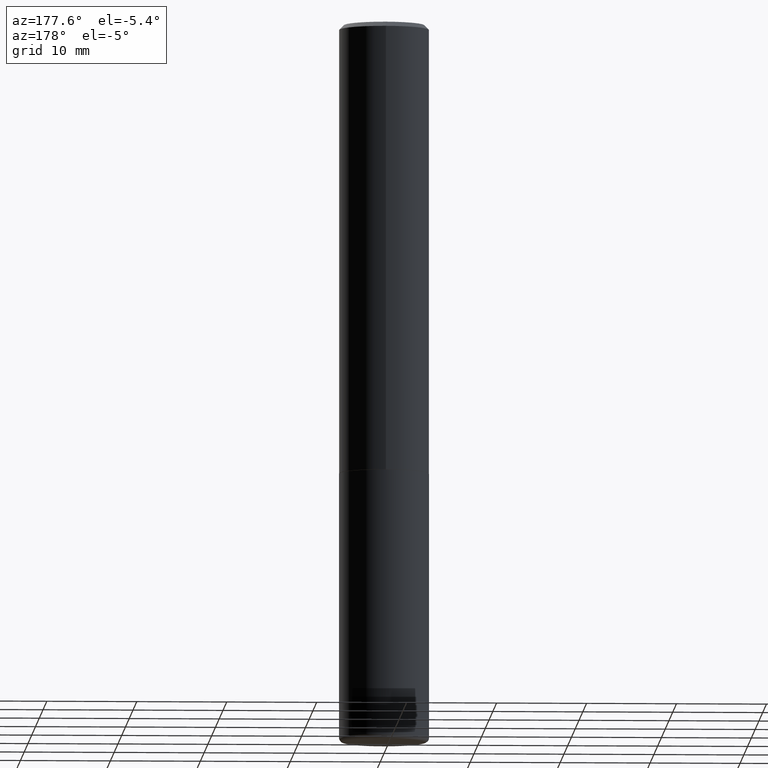
[diagram: clean part render]
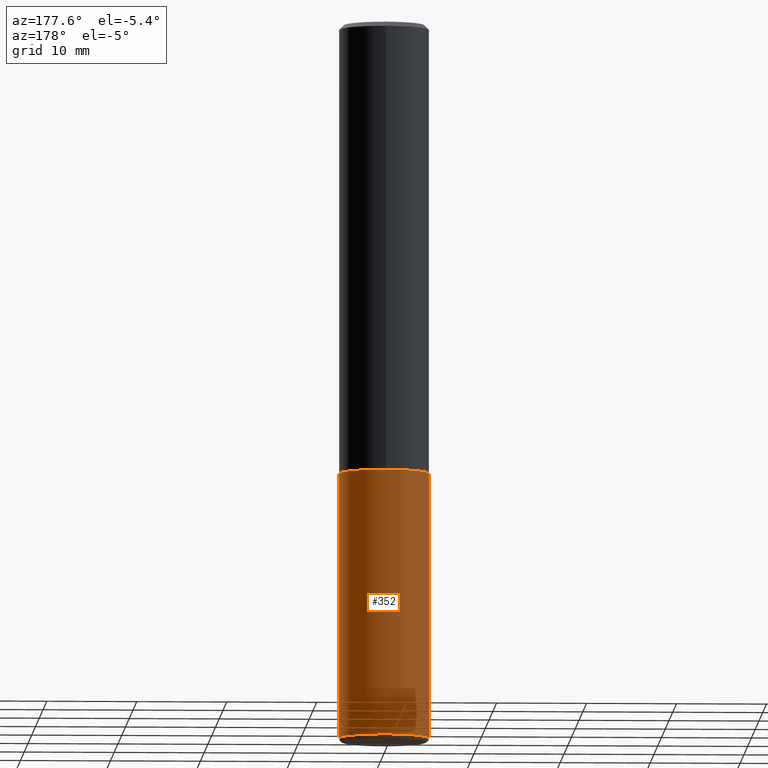
[diagram: same view with one face highlighted and labeled with its STEP entity id]
A machine part, auxiliary view. The second image highlights one B-rep face of the part: STEP entity #352.
In plain terms, the highlighted cylindrical surface (partial cylindrical patch) has radius 5 mm, axis along (-0, 0, 1).
Its self-contained STEP definition (entity closure, byte-faithful):
#5 = CARTESIAN_POINT ( 'NONE',  ( 0.1968499999999999417, -1.230258364554770273E-14, -3.129900000000000571 ) ) ;
#10 = CYLINDRICAL_SURFACE ( 'NONE', #192, 0.1968499999999999694 ) ;
#29 = LINE ( 'NONE', #346, #117 ) ;
#31 = ORIENTED_EDGE ( 'NONE', *, *, #101, .F. ) ;
#35 = LINE ( 'NONE', #417, #264 ) ;
#53 = VERTEX_POINT ( 'NONE', #181 ) ;
#56 = CIRCLE ( 'NONE', #299, 0.1968500000000000250 ) ;
#63 = CARTESIAN_POINT ( 'NONE',  ( -0.1968500000000000250, -7.501780853635190206E-15, -1.968499999999999694 ) ) ;
#101 = EDGE_CURVE ( 'NONE', #334, #273, #29, .T. ) ;
#107 = DIRECTION ( 'NONE',  ( 1.000000000000000000, -6.982962677686266711E-15, 4.876176775795935793E-29 ) ) ;
#117 = VECTOR ( 'NONE', #160, 39.37007874015748143 ) ;
#132 = DIRECTION ( 'NONE',  ( -2.445468806185136597E-29, 3.491481338843145583E-15, 1.000000000000000000 ) ) ;
#133 = CARTESIAN_POINT ( 'NONE',  ( 0.1968500000000000250, -8.247577218615273316E-15, -1.968499999999999694 ) ) ;
#159 = CARTESIAN_POINT ( 'NONE',  ( 7.654072816478859974E-29, -1.092798744244516270E-14, -3.129900000000000571 ) ) ;
#160 = DIRECTION ( 'NONE',  ( -2.445468806185136877E-29, 3.491481338843145188E-15, 1.000000000000000000 ) ) ;
#163 = DIRECTION ( 'NONE',  ( -2.445468806185136877E-29, 3.491481338843145188E-15, 1.000000000000000000 ) ) ;
#164 = DIRECTION ( 'NONE',  ( -2.445468806185136597E-29, 3.491481338843145583E-15, 1.000000000000000000 ) ) ;
#165 = DIRECTION ( 'NONE',  ( 1.000000000000000000, -6.982962677686267499E-15, 0.000000000000000000 ) ) ;
#166 = CARTESIAN_POINT ( 'NONE',  ( 4.813905344975440714E-29, -6.872981015512730918E-15, -1.968499999999999694 ) ) ;
#173 = CARTESIAN_POINT ( 'NONE',  ( 0.000000000000000000, 0.000000000000000000, 0.000000000000000000 ) ) ;
#179 = VERTEX_POINT ( 'NONE', #63 ) ;
#181 = CARTESIAN_POINT ( 'NONE',  ( -0.1968499999999999417, -9.529284067101404126E-15, -3.129900000000000571 ) ) ;
#192 = AXIS2_PLACEMENT_3D ( 'NONE', #173, #233, #107 ) ;
#197 = AXIS2_PLACEMENT_3D ( 'NONE', #159, #164, #379 ) ;
#223 = ORIENTED_EDGE ( 'NONE', *, *, #263, .F. ) ;
#227 = EDGE_CURVE ( 'NONE', #53, #179, #35, .T. ) ;
#231 = EDGE_CURVE ( 'NONE', #334, #53, #287, .T. ) ;
#233 = DIRECTION ( 'NONE',  ( -2.445468806185136597E-29, 3.491481338843145583E-15, 1.000000000000000000 ) ) ;
#246 = ORIENTED_EDGE ( 'NONE', *, *, #231, .T. ) ;
#263 = EDGE_CURVE ( 'NONE', #273, #179, #56, .T. ) ;
#264 = VECTOR ( 'NONE', #163, 39.37007874015748143 ) ;
#273 = VERTEX_POINT ( 'NONE', #133 ) ;
#287 = CIRCLE ( 'NONE', #197, 0.1968499999999999694 ) ;
#299 = AXIS2_PLACEMENT_3D ( 'NONE', #166, #132, #165 ) ;
#306 = ORIENTED_EDGE ( 'NONE', *, *, #227, .T. ) ;
#334 = VERTEX_POINT ( 'NONE', #5 ) ;
#346 = CARTESIAN_POINT ( 'NONE',  ( 0.1968499999999999694, -1.374596203102541411E-15, 9.598753983154298056E-30 ) ) ;
#352 = ADVANCED_FACE ( 'NONE', ( #389 ), #10, .T. ) ;
#371 = EDGE_LOOP ( 'NONE', ( #246, #306, #223, #31 ) ) ;
#379 = DIRECTION ( 'NONE',  ( 1.000000000000000000, -6.982962677686269866E-15, 0.000000000000000000 ) ) ;
#389 = FACE_OUTER_BOUND ( 'NONE', #371, .T. ) ;
#417 = CARTESIAN_POINT ( 'NONE',  ( -0.1968499999999999694, 1.398703375343756999E-15, -9.682923725166782276E-30 ) ) ;